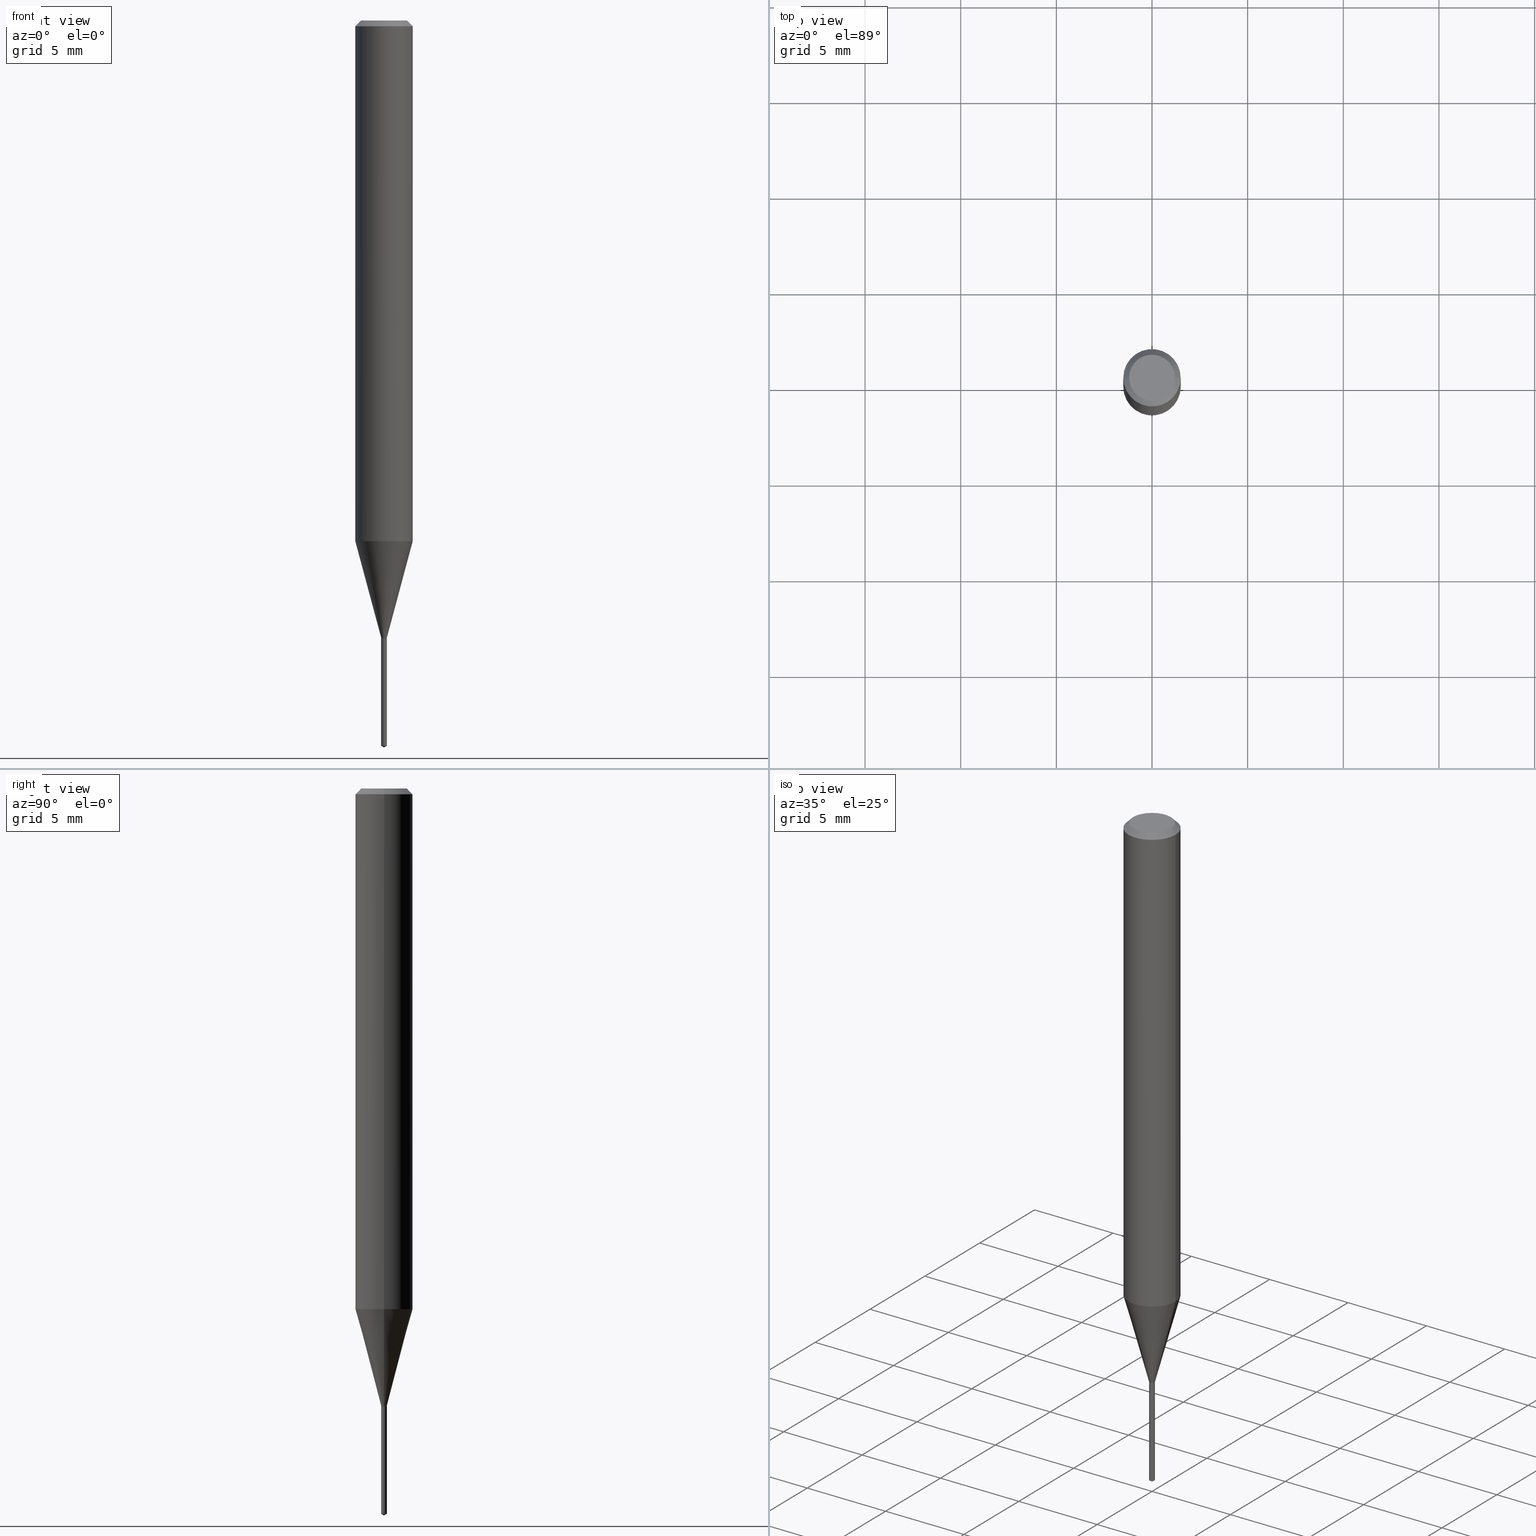
[diagram: canonical four-view strip — front | top / right | iso, engineering-drawing reading convention]
A machine part, canonical four-view strip (front | top / right | iso — engineering-drawing reading convention). The complete STEP part file that produces these views, byte-faithful:
ISO-10303-21;
HEADER;
FILE_DESCRIPTION (( 'STEP AP203' ),
    '1' );
FILE_NAME ('07749.STEP',
    '2024-04-24T02:13:36',
    ( '' ),
    ( '' ),
    'SwSTEP 2.0',
    'SolidWorks 2023',
    '' );
FILE_SCHEMA (( 'CONFIG_CONTROL_DESIGN' ));
ENDSEC;

DATA;
#1 = EDGE_CURVE ( 'NONE', #241, #45, #2, .T. ) ;
#2 = CIRCLE ( 'NONE', #392, 0.04724000000000000421 ) ;
#3 = DIRECTION ( 'NONE',  ( -2.445451076271118923E-29, 3.491506729089142946E-15, 1.000000000000000000 ) ) ;
#4 = ORIENTED_EDGE ( 'NONE', *, *, #381, .T. ) ;
#5 = VECTOR ( 'NONE', #327, 39.37007874015748854 ) ;
#6 = CC_DESIGN_DATE_AND_TIME_ASSIGNMENT ( #473, #354, ( #385 ) ) ;
#7 = DIRECTION ( 'NONE',  ( -2.445451076271118923E-29, 3.491506729089142946E-15, 1.000000000000000000 ) ) ;
#8 = ADVANCED_BREP_SHAPE_REPRESENTATION ( '07749', ( #371, #222, #218 ), #54 ) ;
#9 = DIRECTION ( 'NONE',  ( 1.000000000000000000, -6.982962677686228056E-15, 0.000000000000000000 ) ) ;
#10 = CC_DESIGN_PERSON_AND_ORGANIZATION_ASSIGNMENT ( #49, #198, ( #182 ) ) ;
#11 = CALENDAR_DATE ( 2024, 23, 4 ) ;
#12 = VECTOR ( 'NONE', #130, 39.37007874015748143 ) ;
#13 = VECTOR ( 'NONE', #441, 39.37007874015748854 ) ;
#14 = SECURITY_CLASSIFICATION_LEVEL ( 'unclassified' ) ;
#15 = DIRECTION ( 'NONE',  ( -2.445468806185136597E-29, 3.491481338843145583E-15, 1.000000000000000000 ) ) ;
#16 = CARTESIAN_POINT ( 'NONE',  ( -0.005400000000000000286, -4.401747510875783753E-15, -1.271700000000000275 ) ) ;
#17 = EDGE_CURVE ( 'NONE', #148, #287, #239, .T. ) ;
#18 = CYLINDRICAL_SURFACE ( 'NONE', #195, 0.005899999999999991189 ) ;
#19 = VERTEX_POINT ( 'NONE', #204 ) ;
#20 = CIRCLE ( 'NONE', #350, 0.05905000000000013016 ) ;
#21 = CONICAL_SURFACE ( 'NONE', #30, 65.52281426576949741, 1.029744258676661639 ) ;
#22 = CALENDAR_DATE ( 2024, 23, 4 ) ;
#23 = DIRECTION ( 'NONE',  ( -2.445468806185136597E-29, 3.491481338843145583E-15, 1.000000000000000000 ) ) ;
#24 = EDGE_CURVE ( 'NONE', #287, #450, #116, .T. ) ;
#25 = PERSON_AND_ORGANIZATION_ROLE ( 'classification_officer' ) ;
#26 = CARTESIAN_POINT ( 'NONE',  ( -4.119947979831787729E-17, -0.005900000000004440755, -1.271700000000000053 ) ) ;
#27 = ORIENTED_EDGE ( 'NONE', *, *, #437, .T. ) ;
#28 = DIRECTION ( 'NONE',  ( -2.445451076271118923E-29, 3.491506729089142946E-15, 1.000000000000000000 ) ) ;
#29 = VERTEX_POINT ( 'NONE', #383 ) ;
#30 = AXIS2_PLACEMENT_3D ( 'NONE', #439, #71, #359 ) ;
#31 = CARTESIAN_POINT ( 'NONE',  ( 2.620421311750143284E-29, -3.741267149571589236E-15, -1.071541499577713941 ) ) ;
#32 = EDGE_CURVE ( 'NONE', #172, #294, #88, .T. ) ;
#33 = ORIENTED_EDGE ( 'NONE', *, *, #77, .T. ) ;
#34 = CARTESIAN_POINT ( 'NONE',  ( -0.005899999999999991189, -4.391910130787065442E-15, -1.269900000000000029 ) ) ;
#35 = DIRECTION ( 'NONE',  ( -2.445468806185136597E-29, 3.491481338843145583E-15, 1.000000000000000000 ) ) ;
#36 = ORIENTED_EDGE ( 'NONE', *, *, #471, .T. ) ;
#37 = VECTOR ( 'NONE', #264, 39.37007874015748143 ) ;
#38 = DIRECTION ( 'NONE',  ( -6.982962677686264344E-15, -1.000000000000000000, 3.468864327941537811E-15 ) ) ;
#39 = EDGE_CURVE ( 'NONE', #19, #406, #415, .T. ) ;
#40 = CARTESIAN_POINT ( 'NONE',  ( 0.000000000000000000, 0.000000000000000000, 0.000000000000000000 ) ) ;
#41 = EDGE_LOOP ( 'NONE', ( #109, #475, #452, #170 ) ) ;
#42 =( NAMED_UNIT ( * ) SI_UNIT ( $, .STERADIAN. ) SOLID_ANGLE_UNIT ( ) );
#43 = PLANE ( 'NONE',  #244 ) ;
#44 = AXIS2_PLACEMENT_3D ( 'NONE', #386, #240, #390 ) ;
#45 = VERTEX_POINT ( 'NONE', #376 ) ;
#46 = CC_DESIGN_APPROVAL ( #115, ( #385 ) ) ;
#47 = EDGE_CURVE ( 'NONE', #399, #406, #370, .T. ) ;
#48 = DIRECTION ( 'NONE',  ( -2.445468806185136597E-29, 3.491481338843145583E-15, 1.000000000000000000 ) ) ;
#49 = PERSON_AND_ORGANIZATION ( #455, #402 ) ;
#50 = COORDINATED_UNIVERSAL_TIME_OFFSET ( 5, 0, .BEHIND. ) ;
#51 = DIRECTION ( 'NONE',  ( 1.000000000000000000, 0.000000000000000000, 0.000000000000000000 ) ) ;
#52 = DIRECTION ( 'NONE',  ( -2.445468806185136877E-29, 3.491481338843145188E-15, 1.000000000000000000 ) ) ;
#53 = CIRCLE ( 'NONE', #62, 0.005900000000000000730 ) ;
#54 =( GEOMETRIC_REPRESENTATION_CONTEXT ( 3 ) GLOBAL_UNCERTAINTY_ASSIGNED_CONTEXT ( ( #466 ) ) GLOBAL_UNIT_ASSIGNED_CONTEXT ( ( #75, #112, #42 ) ) REPRESENTATION_CONTEXT ( 'NONE', 'WORKASPACE' ) );
#55 = EDGE_CURVE ( 'NONE', #211, #19, #166, .T. ) ;
#56 = PLANE ( 'NONE',  #99 ) ;
#57 = FACE_OUTER_BOUND ( 'NONE', #365, .T. ) ;
#58 = DIRECTION ( 'NONE',  ( 1.000000000000000000, -6.982962677686266711E-15, 4.876185090822587894E-29 ) ) ;
#59 = CLOSED_SHELL ( 'NONE', ( #306, #258, #324, #461, #479, #282, #368, #442, #138, #200, #247, #422 ) ) ;
#60 = CC_DESIGN_PERSON_AND_ORGANIZATION_ASSIGNMENT ( #431, #125, ( #225 ) ) ;
#61 = ORIENTED_EDGE ( 'NONE', *, *, #348, .F. ) ;
#62 = AXIS2_PLACEMENT_3D ( 'NONE', #379, #3, #199 ) ;
#63 = CARTESIAN_POINT ( 'NONE',  ( -0.05904999999999999832, -1.471675286625323003E-15, -0.01181000000000007044 ) ) ;
#64 = ORIENTED_EDGE ( 'NONE', *, *, #238, .F. ) ;
#65 = CARTESIAN_POINT ( 'NONE',  ( 3.105500836974505052E-29, -4.433832152196910680E-15, -1.269900000000000029 ) ) ;
#66 = ORIENTED_EDGE ( 'NONE', *, *, #314, .F. ) ;
#67 = CARTESIAN_POINT ( 'NONE',  ( 3.105500836974505052E-29, -4.433832152196910680E-15, -1.269900000000000029 ) ) ;
#68 = CARTESIAN_POINT ( 'NONE',  ( 3.649992588380687370E-29, -5.211233266136413575E-15, -1.492554922347737456 ) ) ;
#69 = ORIENTED_EDGE ( 'NONE', *, *, #238, .T. ) ;
#70 = CIRCLE ( 'NONE', #92, 0.005899999999999991189 ) ;
#71 = DIRECTION ( 'NONE',  ( -2.445451076271118923E-29, 3.491506729089142946E-15, 1.000000000000000000 ) ) ;
#72 = EDGE_CURVE ( 'NONE', #406, #399, #160, .T. ) ;
#73 = DIRECTION ( 'NONE',  ( -2.445468806185136597E-29, 3.491481338843145583E-15, 1.000000000000000000 ) ) ;
#74 = DIRECTION ( 'NONE',  ( -2.445451076271118923E-29, 3.491506729089142946E-15, 1.000000000000000000 ) ) ;
#75 =( CONVERSION_BASED_UNIT ( 'INCH', #407 ) LENGTH_UNIT ( ) NAMED_UNIT ( #101 ) );
#76 = DIRECTION ( 'NONE',  ( -0.7071067811865453523, 2.468850131082234184E-15, -0.7071067811865496822 ) ) ;
#77 = EDGE_CURVE ( 'NONE', #29, #230, #291, .T. ) ;
#78 = AXIS2_PLACEMENT_3D ( 'NONE', #352, #23, #316 ) ;
#79 = DIRECTION ( 'NONE',  ( -2.445468806185136597E-29, 3.491481338843145583E-15, 1.000000000000000000 ) ) ;
#80 = DIRECTION ( 'NONE',  ( 2.445468806185136597E-29, -3.491481338843145583E-15, -1.000000000000000000 ) ) ;
#81 = PERSON_AND_ORGANIZATION ( #455, #402 ) ;
#82 = ORIENTED_EDGE ( 'NONE', *, *, #336, .F. ) ;
#83 = CARTESIAN_POINT ( 'NONE',  ( 0.005400000000000000286, -4.477824817066335725E-15, -1.271700000000000275 ) ) ;
#84 = VECTOR ( 'NONE', #197, 39.37007874015748143 ) ;
#85 = AXIS2_PLACEMENT_3D ( 'NONE', #65, #140, #215 ) ;
#86 = APPROVAL_STATUS ( 'not_yet_approved' ) ;
#87 = CARTESIAN_POINT ( 'NONE',  ( 3.658639355209220542E-29, -5.223643217390265926E-15, -1.496099999999999985 ) ) ;
#88 = LINE ( 'NONE', #467, #37 ) ;
#89 = EDGE_CURVE ( 'NONE', #440, #294, #384, .T. ) ;
#90 = LINE ( 'NONE', #26, #107 ) ;
#91 = AXIS2_PLACEMENT_3D ( 'NONE', #126, #430, #272 ) ;
#92 = AXIS2_PLACEMENT_3D ( 'NONE', #482, #149, #183 ) ;
#93 = FACE_OUTER_BOUND ( 'NONE', #196, .T. ) ;
#94 = CARTESIAN_POINT ( 'NONE',  ( 8.265746106709734507E-48, -1.180129479067563789E-33, -3.380025165646692144E-19 ) ) ;
#95 = CYLINDRICAL_SURFACE ( 'NONE', #401, 0.05905000000000006771 ) ;
#96 = APPROVAL ( #299, 'UNSPECIFIED' ) ;
#97 = EDGE_LOOP ( 'NONE', ( #403, #213, #191, #322 ) ) ;
#98 = CARTESIAN_POINT ( 'NONE',  ( 2.620421311750143284E-29, -3.741267149571589236E-15, -1.071541499577713941 ) ) ;
#99 = AXIS2_PLACEMENT_3D ( 'NONE', #127, #277, #212 ) ;
#100 = ORIENTED_EDGE ( 'NONE', *, *, #1, .T. ) ;
#101 = DIMENSIONAL_EXPONENTS ( 1.000000000000000000, 0.000000000000000000, 0.000000000000000000, 0.000000000000000000, 0.000000000000000000, 0.000000000000000000, 0.000000000000000000 ) ;
#102 = CARTESIAN_POINT ( 'NONE',  ( 3.658639355209220542E-29, -5.223643217390265926E-15, -1.496099999999999985 ) ) ;
#103 = ORIENTED_EDGE ( 'NONE', *, *, #471, .F. ) ;
#104 = FACE_OUTER_BOUND ( 'NONE', #118, .T. ) ;
#105 = EDGE_LOOP ( 'NONE', ( #111, #184, #209, #490 ) ) ;
#106 = EDGE_CURVE ( 'NONE', #294, #168, #151, .T. ) ;
#107 = VECTOR ( 'NONE', #163, 39.37007874015748143 ) ;
#108 = CARTESIAN_POINT ( 'NONE',  ( 0.000000000000000000, 0.000000000000000000, 0.000000000000000000 ) ) ;
#109 = ORIENTED_EDGE ( 'NONE', *, *, #296, .F. ) ;
#110 = EDGE_CURVE ( 'NONE', #45, #450, #328, .T. ) ;
#111 = ORIENTED_EDGE ( 'NONE', *, *, #336, .T. ) ;
#112 =( NAMED_UNIT ( * ) PLANE_ANGLE_UNIT ( ) SI_UNIT ( $, .RADIAN. ) );
#113 = CARTESIAN_POINT ( 'NONE',  ( 4.192202140987700220E-17, 0.005899999999995559838, -1.271700000000000053 ) ) ;
#114 = ORIENTED_EDGE ( 'NONE', *, *, #437, .F. ) ;
#115 = APPROVAL ( #271, 'UNSPECIFIED' ) ;
#116 = CIRCLE ( 'NONE', #425, 0.05904999999999999832 ) ;
#117 = LOCAL_TIME ( 22, 13, 36.00000000000000000, #338 ) ;
#118 = EDGE_LOOP ( 'NONE', ( #456, #194, #391 ) ) ;
#119 = EDGE_CURVE ( 'NONE', #241, #287, #141, .T. ) ;
#120 = ORIENTED_EDGE ( 'NONE', *, *, #388, .F. ) ;
#121 = DIRECTION ( 'NONE',  ( 1.000000000000000000, -6.982962677686296687E-15, 0.000000000000000000 ) ) ;
#122 = APPROVAL_ROLE ( '' ) ;
#123 = CARTESIAN_POINT ( 'NONE',  ( 3.649992588380687370E-29, -5.211233266136413575E-15, -1.492554922347737456 ) ) ;
#124 = CONICAL_SURFACE ( 'NONE', #85, 0.005899999999999991189, 0.2617993877991499074 ) ;
#125 = PERSON_AND_ORGANIZATION_ROLE ( 'creator' ) ;
#126 = CARTESIAN_POINT ( 'NONE',  ( 3.109902680825639250E-29, -4.440116818606829671E-15, -1.271700000000000275 ) ) ;
#127 = CARTESIAN_POINT ( 'NONE',  ( -4.181500184712240002E-28, -6.877513706940021772E-14, -1.271700000000000053 ) ) ;
#128 = CIRCLE ( 'NONE', #44, 0.05904999999999999832 ) ;
#129 = DIRECTION ( 'NONE',  ( -2.445468806185136597E-29, 3.491481338843145583E-15, 1.000000000000000000 ) ) ;
#130 = DIRECTION ( 'NONE',  ( -0.7071067811864192310, 7.493145998869890310E-15, 0.7071067811866758035 ) ) ;
#131 = ORIENTED_EDGE ( 'NONE', *, *, #89, .T. ) ;
#132 = DIRECTION ( 'NONE',  ( 2.445468806185136597E-29, -3.491481338843145583E-15, -1.000000000000000000 ) ) ;
#133 = DATE_AND_TIME ( #339, #292 ) ;
#134 = DIRECTION ( 'NONE',  ( -6.982962677686265133E-15, -1.000000000000000000, 0.000000000000000000 ) ) ;
#135 = AXIS2_PLACEMENT_3D ( 'NONE', #68, #74, #189 ) ;
#136 = ORIENTED_EDGE ( 'NONE', *, *, #174, .T. ) ;
#137 = LINE ( 'NONE', #34, #5 ) ;
#138 = ADVANCED_FACE ( 'NONE', ( #289 ), #253, .T. ) ;
#139 = VERTEX_POINT ( 'NONE', #447 ) ;
#140 = DIRECTION ( 'NONE',  ( -2.445468806185136597E-29, 3.491481338843145583E-15, 1.000000000000000000 ) ) ;
#141 = LINE ( 'NONE', #257, #463 ) ;
#142 = DIRECTION ( 'NONE',  ( 1.000000000000000000, -6.982962677686228056E-15, 0.000000000000000000 ) ) ;
#143 = ORIENTED_EDGE ( 'NONE', *, *, #17, .T. ) ;
#144 = VECTOR ( 'NONE', #249, 39.37007874015748143 ) ;
#145 = APPROVAL ( #86, 'UNSPECIFIED' ) ;
#146 = CARTESIAN_POINT ( 'NONE',  ( -4.119947979831246003E-17, -0.005900000000005210105, -1.492554922347737456 ) ) ;
#147 = DIRECTION ( 'NONE',  ( 0.7071067811865453523, -7.319954787623248157E-15, -0.7071067811865496822 ) ) ;
#148 = VERTEX_POINT ( 'NONE', #227 ) ;
#149 = DIRECTION ( 'NONE',  ( -2.445468806185136597E-29, 3.491481338843145583E-15, 1.000000000000000000 ) ) ;
#150 = PRODUCT_RELATED_PRODUCT_CATEGORY ( 'detail', '', ( #434 ) ) ;
#151 = LINE ( 'NONE', #113, #268 ) ;
#152 = ORIENTED_EDGE ( 'NONE', *, *, #32, .F. ) ;
#153 = PERSON_AND_ORGANIZATION ( #455, #402 ) ;
#154 = CARTESIAN_POINT ( 'NONE',  ( 4.192202140988244411E-17, 0.005899999999995559838, -1.271700000000000053 ) ) ;
#155 = ORIENTED_EDGE ( 'NONE', *, *, #47, .T. ) ;
#156 = ADVANCED_FACE ( 'NONE', ( #334 ), #43, .F. ) ;
#157 = CARTESIAN_POINT ( 'NONE',  ( 3.109902680825639250E-29, -4.440116818606829671E-15, -1.271700000000000275 ) ) ;
#158 = DATE_AND_TIME ( #457, #472 ) ;
#159 = CARTESIAN_POINT ( 'NONE',  ( 0.005899999999999991189, -4.119947979834891403E-17, 2.876944297719597571E-31 ) ) ;
#160 = CIRCLE ( 'NONE', #470, 0.005899999999999991189 ) ;
#161 = EDGE_CURVE ( 'NONE', #294, #440, #275, .T. ) ;
#162 = CARTESIAN_POINT ( 'NONE',  ( 4.132873053354867254E-48, -5.900647395337818946E-34, -1.690012582823346072E-19 ) ) ;
#163 = DIRECTION ( 'NONE',  ( -2.445451076271118643E-29, 3.491506729089142552E-15, 1.000000000000000000 ) ) ;
#164 = EDGE_CURVE ( 'NONE', #168, #356, #53, .T. ) ;
#165 = DIRECTION ( 'NONE',  ( -6.982962677686265133E-15, -1.000000000000000000, 0.000000000000000000 ) ) ;
#166 = CIRCLE ( 'NONE', #245, 0.005400000000000000286 ) ;
#167 = CC_DESIGN_APPROVAL ( #96, ( #182 ) ) ;
#168 = VERTEX_POINT ( 'NONE', #154 ) ;
#169 = CYLINDRICAL_SURFACE ( 'NONE', #488, 0.005900000000000000730 ) ;
#170 = ORIENTED_EDGE ( 'NONE', *, *, #47, .F. ) ;
#171 = CARTESIAN_POINT ( 'NONE',  ( -4.119947979831787729E-17, -0.005900000000004440755, -1.271700000000000053 ) ) ;
#172 = VERTEX_POINT ( 'NONE', #87 ) ;
#173 = CARTESIAN_POINT ( 'NONE',  ( 4.192202140988240097E-17, 0.005899999999994787019, -1.492554922347737456 ) ) ;
#174 = EDGE_CURVE ( 'NONE', #406, #29, #462, .T. ) ;
#175 = AXIS2_PLACEMENT_3D ( 'NONE', #123, #7, #335 ) ;
#176 = ORIENTED_EDGE ( 'NONE', *, *, #454, .F. ) ;
#177 = LOCAL_TIME ( 22, 13, 36.00000000000000000, #202 ) ;
#178 = CYLINDRICAL_SURFACE ( 'NONE', #453, 0.005900000000000000730 ) ;
#179 = ORIENTED_EDGE ( 'NONE', *, *, #343, .T. ) ;
#180 = DIRECTION ( 'NONE',  ( 1.000000000000000000, -6.982962677686265133E-15, 0.000000000000000000 ) ) ;
#181 = DIRECTION ( 'NONE',  ( -2.445468806185136597E-29, 3.491481338843145583E-15, 1.000000000000000000 ) ) ;
#182 = PRODUCT_DEFINITION ( 'UNKNOWN', '', #225, #420 ) ;
#183 = DIRECTION ( 'NONE',  ( 1.000000000000000000, -6.982962677686228056E-15, 0.000000000000000000 ) ) ;
#184 = ORIENTED_EDGE ( 'NONE', *, *, #296, .T. ) ;
#185 = CLOSED_SHELL ( 'NONE', ( #302, #426, #412, #485, #156 ) ) ;
#186 = CC_DESIGN_PERSON_AND_ORGANIZATION_ASSIGNMENT ( #342, #284, ( #225 ) ) ;
#187 = VECTOR ( 'NONE', #486, 39.37007874015748143 ) ;
#188 = FACE_OUTER_BOUND ( 'NONE', #448, .T. ) ;
#189 = DIRECTION ( 'NONE',  ( -6.982962677686265133E-15, -1.000000000000000000, 0.000000000000000000 ) ) ;
#190 = CARTESIAN_POINT ( 'NONE',  ( -0.005899999999999991189, -4.394179593657313002E-15, -1.271200000000000108 ) ) ;
#191 = ORIENTED_EDGE ( 'NONE', *, *, #119, .T. ) ;
#192 = APPLICATION_PROTOCOL_DEFINITION ( 'international standard', 'config_control_design', 1994, #404 ) ;
#193 = DIRECTION ( 'NONE',  ( 6.982962677686265922E-15, 1.000000000000000000, -3.491506729089142552E-15 ) ) ;
#194 = ORIENTED_EDGE ( 'NONE', *, *, #32, .T. ) ;
#195 = AXIS2_PLACEMENT_3D ( 'NONE', #346, #436, #474 ) ;
#196 = EDGE_LOOP ( 'NONE', ( #358, #155, #136, #446 ) ) ;
#197 = DIRECTION ( 'NONE',  ( -2.445468806185136877E-29, 3.491481338843145188E-15, 1.000000000000000000 ) ) ;
#198 = PERSON_AND_ORGANIZATION_ROLE ( 'creator' ) ;
#199 = DIRECTION ( 'NONE',  ( -6.982962677686265133E-15, -1.000000000000000000, 0.000000000000000000 ) ) ;
#200 = ADVANCED_FACE ( 'NONE', ( #201 ), #300, .F. ) ;
#201 = FACE_OUTER_BOUND ( 'NONE', #396, .T. ) ;
#202 = COORDINATED_UNIVERSAL_TIME_OFFSET ( 5, 0, .BEHIND. ) ;
#203 = CIRCLE ( 'NONE', #305, 0.005900000000000000730 ) ;
#204 = CARTESIAN_POINT ( 'NONE',  ( 0.005400000000000000286, -4.477824817066335725E-15, -1.271700000000000275 ) ) ;
#205 = CARTESIAN_POINT ( 'NONE',  ( -0.005899999999999991189, -4.394179593657313002E-15, -1.269900000000000029 ) ) ;
#206 = FACE_OUTER_BOUND ( 'NONE', #256, .T. ) ;
#207 = PRODUCT_DEFINITION_SHAPE ( 'NONE', 'NONE',  #182 ) ;
#208 = CARTESIAN_POINT ( 'NONE',  ( 3.109902680825638129E-29, -4.440116818606828093E-15, -1.271700000000000053 ) ) ;
#209 = ORIENTED_EDGE ( 'NONE', *, *, #72, .F. ) ;
#210 = DIRECTION ( 'NONE',  ( -2.445468806185136597E-29, 3.491481338843145583E-15, 1.000000000000000000 ) ) ;
#211 = VERTEX_POINT ( 'NONE', #413 ) ;
#212 = DIRECTION ( 'NONE',  ( 1.000000000000000000, -6.982962677686265922E-15, 4.876176775795935793E-29 ) ) ;
#213 = ORIENTED_EDGE ( 'NONE', *, *, #1, .F. ) ;
#214 = CC_DESIGN_PERSON_AND_ORGANIZATION_ASSIGNMENT ( #309, #25, ( #385 ) ) ;
#215 = DIRECTION ( 'NONE',  ( 1.000000000000000000, -6.982962677686228056E-15, 0.000000000000000000 ) ) ;
#216 = CONICAL_SURFACE ( 'NONE', #224, 0.05904999999999999832, 0.7853981633974452814 ) ;
#217 = EDGE_LOOP ( 'NONE', ( #480, #373, #375, #263 ) ) ;
#218 = AXIS2_PLACEMENT_3D ( 'NONE', #460, #382, #51 ) ;
#219 = CARTESIAN_POINT ( 'NONE',  ( 0.005899999999999991189, -4.479570557735755651E-15, -1.271200000000000108 ) ) ;
#220 = FACE_OUTER_BOUND ( 'NONE', #394, .T. ) ;
#221 = ORIENTED_EDGE ( 'NONE', *, *, #266, .T. ) ;
#222 = MANIFOLD_SOLID_BREP ( 'Body-Move/Copy2[2]', #59 ) ;
#223 = DIRECTION ( 'NONE',  ( 1.000000000000000000, -6.982962677686296687E-15, 0.000000000000000000 ) ) ;
#224 = AXIS2_PLACEMENT_3D ( 'NONE', #357, #132, #312 ) ;
#225 = PRODUCT_DEFINITION_FORMATION_WITH_SPECIFIED_SOURCE ( 'ANY', '', #434, .NOT_KNOWN. ) ;
#226 = FACE_OUTER_BOUND ( 'NONE', #414, .T. ) ;
#227 = CARTESIAN_POINT ( 'NONE',  ( -0.05905000000000013710, -3.321691664105248954E-15, -1.071541499577713941 ) ) ;
#228 = EDGE_LOOP ( 'NONE', ( #82, #389 ) ) ;
#229 = DIRECTION ( 'NONE',  ( 2.445451076271118923E-29, -3.491506729089142552E-15, -1.000000000000000000 ) ) ;
#230 = VERTEX_POINT ( 'NONE', #205 ) ;
#231 = DIRECTION ( 'NONE',  ( 0.7071067811864192310, -2.468850131080913236E-15, 0.7071067811866758035 ) ) ;
#232 = VECTOR ( 'NONE', #432, 39.37007874015748143 ) ;
#233 = AXIS2_PLACEMENT_3D ( 'NONE', #487, #397, #38 ) ;
#234 = CC_DESIGN_DATE_AND_TIME_ASSIGNMENT ( #304, #269, ( #182 ) ) ;
#235 = CARTESIAN_POINT ( 'NONE',  ( 3.108679946422545888E-29, -4.438371077937407378E-15, -1.271200000000000108 ) ) ;
#236 = APPROVAL_ROLE ( '' ) ;
#237 = LINE ( 'NONE', #16, #12 ) ;
#238 = EDGE_CURVE ( 'NONE', #356, #168, #203, .T. ) ;
#239 = LINE ( 'NONE', #340, #84 ) ;
#240 = DIRECTION ( 'NONE',  ( -2.445468806185136597E-29, 3.491481338843145583E-15, 1.000000000000000000 ) ) ;
#241 = VERTEX_POINT ( 'NONE', #279 ) ;
#242 = APPROVAL_ROLE ( '' ) ;
#243 = FACE_OUTER_BOUND ( 'NONE', #283, .T. ) ;
#244 = AXIS2_PLACEMENT_3D ( 'NONE', #458, #229, #193 ) ;
#245 = AXIS2_PLACEMENT_3D ( 'NONE', #157, #303, #121 ) ;
#246 = CC_DESIGN_APPROVAL ( #145, ( #225 ) ) ;
#247 = ADVANCED_FACE ( 'NONE', ( #468 ), #56, .F. ) ;
#248 = ORIENTED_EDGE ( 'NONE', *, *, #360, .T. ) ;
#249 = DIRECTION ( 'NONE',  ( -5.985567269335968101E-15, -0.8571673007021141100, 0.5150380749100510469 ) ) ;
#250 = EDGE_LOOP ( 'NONE', ( #69, #278 ) ) ;
#251 = FACE_OUTER_BOUND ( 'NONE', #252, .T. ) ;
#252 = EDGE_LOOP ( 'NONE', ( #33, #27, #176, #120 ) ) ;
#253 = CONICAL_SURFACE ( 'NONE', #408, 0.05904999999999999832, 0.7853981633974452814 ) ;
#254 = FACE_OUTER_BOUND ( 'NONE', #41, .T. ) ;
#255 =( LENGTH_UNIT ( ) NAMED_UNIT ( * ) SI_UNIT ( $, .METRE. ) );
#256 = EDGE_LOOP ( 'NONE', ( #131, #438, #64, #66 ) ) ;
#257 = CARTESIAN_POINT ( 'NONE',  ( -0.05904999999999999832, 3.711095515056362547E-16, -0.01181000000000007044 ) ) ;
#258 = ADVANCED_FACE ( 'NONE', ( #243 ), #216, .T. ) ;
#259 = AXIS2_PLACEMENT_3D ( 'NONE', #40, #35, #323 ) ;
#260 = ORIENTED_EDGE ( 'NONE', *, *, #161, .F. ) ;
#261 = COORDINATED_UNIVERSAL_TIME_OFFSET ( 5, 0, .BEHIND. ) ;
#262 = DIRECTION ( 'NONE',  ( 2.438088387897960049E-29, -3.491481338843145188E-15, -1.000000000000000000 ) ) ;
#263 = ORIENTED_EDGE ( 'NONE', *, *, #164, .F. ) ;
#264 = DIRECTION ( 'NONE',  ( 6.090539988449806046E-15, 0.8571673007021177737, 0.5150380749100450517 ) ) ;
#265 = APPLICATION_PROTOCOL_DEFINITION ( 'international standard', 'config_control_design', 1994, #366 ) ;
#266 = EDGE_CURVE ( 'NONE', #45, #241, #377, .T. ) ;
#267 = DIRECTION ( 'NONE',  ( -2.445468806185136597E-29, 3.491481338843145583E-15, 1.000000000000000000 ) ) ;
#268 = VECTOR ( 'NONE', #362, 39.37007874015748143 ) ;
#269 = DATE_TIME_ROLE ( 'creation_date' ) ;
#270 = DIRECTION ( 'NONE',  ( 1.000000000000000000, -6.982962677686266711E-15, 0.000000000000000000 ) ) ;
#271 = APPROVAL_STATUS ( 'not_yet_approved' ) ;
#272 = DIRECTION ( 'NONE',  ( 1.000000000000000000, -6.982962677686296687E-15, 0.000000000000000000 ) ) ;
#273 = CC_DESIGN_PERSON_AND_ORGANIZATION_ASSIGNMENT ( #81, #451, ( #434 ) ) ;
#274 = CALENDAR_DATE ( 2024, 23, 4 ) ;
#275 = CIRCLE ( 'NONE', #175, 0.005900000000000000730 ) ;
#276 = AXIS2_PLACEMENT_3D ( 'NONE', #31, #286, #180 ) ;
#277 = DIRECTION ( 'NONE',  ( -2.438088387897960049E-29, 3.491481338843145188E-15, 1.000000000000000000 ) ) ;
#278 = ORIENTED_EDGE ( 'NONE', *, *, #164, .T. ) ;
#279 = CARTESIAN_POINT ( 'NONE',  ( -0.04724000000000000421, 3.504923541997677355E-16, -3.380025165670481712E-19 ) ) ;
#280 = ORIENTED_EDGE ( 'NONE', *, *, #119, .F. ) ;
#281 = CARTESIAN_POINT ( 'NONE',  ( -0.005899999999999991189, 4.192202140984584836E-17, -2.902171703250389691E-31 ) ) ;
#282 = ADVANCED_FACE ( 'NONE', ( #93 ), #18, .T. ) ;
#283 = EDGE_LOOP ( 'NONE', ( #318, #285, #483, #280 ) ) ;
#284 = PERSON_AND_ORGANIZATION_ROLE ( 'design_supplier' ) ;
#285 = ORIENTED_EDGE ( 'NONE', *, *, #110, .T. ) ;
#286 = DIRECTION ( 'NONE',  ( -2.445468806185136597E-29, 3.491481338843145583E-15, 1.000000000000000000 ) ) ;
#287 = VERTEX_POINT ( 'NONE', #63 ) ;
#288 = CARTESIAN_POINT ( 'NONE',  ( 0.05905000000000006771, -4.123439461173745257E-16, 2.879382386107503723E-30 ) ) ;
#289 = FACE_OUTER_BOUND ( 'NONE', #97, .T. ) ;
#290 = DIRECTION ( 'NONE',  ( -6.982962677686265133E-15, -1.000000000000000000, 0.000000000000000000 ) ) ;
#291 = CIRCLE ( 'NONE', #418, 0.005899999999999991189 ) ;
#292 = LOCAL_TIME ( 22, 13, 36.00000000000000000, #50 ) ;
#293 = DIRECTION ( 'NONE',  ( -2.445451076271118923E-29, 3.491506729089142946E-15, 1.000000000000000000 ) ) ;
#294 = VERTEX_POINT ( 'NONE', #173 ) ;
#295 = DIRECTION ( 'NONE',  ( -2.445468806185136597E-29, 3.491481338843145583E-15, 1.000000000000000000 ) ) ;
#296 = EDGE_CURVE ( 'NONE', #211, #399, #237, .T. ) ;
#297 = CONICAL_SURFACE ( 'NONE', #91, 0.005400000000000000286, 0.7853981633972668686 ) ;
#298 = AXIS2_PLACEMENT_3D ( 'NONE', #67, #73, #142 ) ;
#299 = APPROVAL_STATUS ( 'not_yet_approved' ) ;
#300 = PLANE ( 'NONE',  #435 ) ;
#301 = ORIENTED_EDGE ( 'NONE', *, *, #331, .F. ) ;
#302 = ADVANCED_FACE ( 'NONE', ( #206 ), #169, .T. ) ;
#303 = DIRECTION ( 'NONE',  ( -2.445468806185136597E-29, 3.491481338843145583E-15, 1.000000000000000000 ) ) ;
#304 = DATE_AND_TIME ( #11, #117 ) ;
#305 = AXIS2_PLACEMENT_3D ( 'NONE', #393, #308, #134 ) ;
#306 = ADVANCED_FACE ( 'NONE', ( #387 ), #297, .T. ) ;
#307 = SHAPE_DEFINITION_REPRESENTATION ( #207, #8 ) ;
#308 = DIRECTION ( 'NONE',  ( -2.445451076271118923E-29, 3.491506729089142946E-15, 1.000000000000000000 ) ) ;
#309 = PERSON_AND_ORGANIZATION ( #455, #402 ) ;
#310 = VECTOR ( 'NONE', #52, 39.37007874015748143 ) ;
#311 = CC_DESIGN_SECURITY_CLASSIFICATION ( #385, ( #225 ) ) ;
#312 = DIRECTION ( 'NONE',  ( -1.000000000000000000, 6.982962677686266711E-15, 0.000000000000000000 ) ) ;
#313 = ORIENTED_EDGE ( 'NONE', *, *, #454, .T. ) ;
#314 = EDGE_CURVE ( 'NONE', #440, #356, #90, .T. ) ;
#315 = PERSON_AND_ORGANIZATION ( #455, #402 ) ;
#316 = DIRECTION ( 'NONE',  ( 1.000000000000000000, -6.982962677686296687E-15, 0.000000000000000000 ) ) ;
#317 = LINE ( 'NONE', #102, #144 ) ;
#318 = ORIENTED_EDGE ( 'NONE', *, *, #266, .F. ) ;
#319 = DIRECTION ( 'NONE',  ( -2.445468806185136597E-29, 3.491481338843145583E-15, 1.000000000000000000 ) ) ;
#320 = AXIS2_PLACEMENT_3D ( 'NONE', #428, #319, #58 ) ;
#321 = APPROVAL_PERSON_ORGANIZATION ( #153, #96, #122 ) ;
#322 = ORIENTED_EDGE ( 'NONE', *, *, #24, .T. ) ;
#323 = DIRECTION ( 'NONE',  ( 1.000000000000000000, -6.982962677686266711E-15, 4.876176775795935232E-29 ) ) ;
#324 = ADVANCED_FACE ( 'NONE', ( #57 ), #95, .T. ) ;
#325 = LINE ( 'NONE', #288, #187 ) ;
#326 = DIRECTION ( 'NONE',  ( -1.000000000000000000, 6.982962677686266711E-15, 0.000000000000000000 ) ) ;
#327 = DIRECTION ( 'NONE',  ( -0.2588190451025211836, 5.211531920934547886E-15, 0.9659258262890679791 ) ) ;
#328 = LINE ( 'NONE', #409, #337 ) ;
#329 = ORIENTED_EDGE ( 'NONE', *, *, #388, .T. ) ;
#330 = VECTOR ( 'NONE', #231, 39.37007874015748143 ) ;
#331 = EDGE_CURVE ( 'NONE', #450, #287, #128, .T. ) ;
#332 = CARTESIAN_POINT ( 'NONE',  ( 2.888098660104663766E-31, -4.123439461173779647E-17, -0.01181000000000007044 ) ) ;
#333 = ORIENTED_EDGE ( 'NONE', *, *, #72, .T. ) ;
#334 = FACE_OUTER_BOUND ( 'NONE', #250, .T. ) ;
#335 = DIRECTION ( 'NONE',  ( -6.982962677686265133E-15, -1.000000000000000000, 0.000000000000000000 ) ) ;
#336 = EDGE_CURVE ( 'NONE', #19, #211, #444, .T. ) ;
#337 = VECTOR ( 'NONE', #147, 39.37007874015748143 ) ;
#338 = COORDINATED_UNIVERSAL_TIME_OFFSET ( 5, 0, .BEHIND. ) ;
#339 = CALENDAR_DATE ( 2024, 23, 4 ) ;
#340 = CARTESIAN_POINT ( 'NONE',  ( -0.05905000000000006771, 4.195754854663396409E-16, -2.904631170795525045E-30 ) ) ;
#341 = CONICAL_SURFACE ( 'NONE', #410, 0.005400000000000000286, 0.7853981633972668686 ) ;
#342 = PERSON_AND_ORGANIZATION ( #455, #402 ) ;
#343 = EDGE_CURVE ( 'NONE', #399, #230, #476, .T. ) ;
#344 = CARTESIAN_POINT ( 'NONE',  ( 2.888098660104663766E-31, -4.123439461173779647E-17, -0.01181000000000007044 ) ) ;
#345 = APPROVAL_DATE_TIME ( #427, #115 ) ;
#346 = CARTESIAN_POINT ( 'NONE',  ( 0.000000000000000000, 0.000000000000000000, 0.000000000000000000 ) ) ;
#347 = DIRECTION ( 'NONE',  ( -2.445468806185136597E-29, 3.491481338843145583E-15, 1.000000000000000000 ) ) ;
#348 = EDGE_CURVE ( 'NONE', #148, #139, #20, .T. ) ;
#349 = APPROVAL_DATE_TIME ( #133, #145 ) ;
#350 = AXIS2_PLACEMENT_3D ( 'NONE', #98, #210, #355 ) ;
#351 = LOCAL_TIME ( 22, 13, 36.00000000000000000, #477 ) ;
#352 = CARTESIAN_POINT ( 'NONE',  ( 3.109902680825639250E-29, -4.440116818606829671E-15, -1.271700000000000275 ) ) ;
#353 = ORIENTED_EDGE ( 'NONE', *, *, #174, .F. ) ;
#354 = DATE_TIME_ROLE ( 'classification_date' ) ;
#355 = DIRECTION ( 'NONE',  ( 1.000000000000000000, -6.982962677686265133E-15, 0.000000000000000000 ) ) ;
#356 = VERTEX_POINT ( 'NONE', #171 ) ;
#357 = CARTESIAN_POINT ( 'NONE',  ( 2.888098660104663766E-31, -4.123439461173779647E-17, -0.01181000000000007044 ) ) ;
#358 = ORIENTED_EDGE ( 'NONE', *, *, #343, .F. ) ;
#359 = DIRECTION ( 'NONE',  ( -6.982962677686264344E-15, -1.000000000000000000, 3.468864327941537811E-15 ) ) ;
#360 = EDGE_CURVE ( 'NONE', #172, #440, #317, .T. ) ;
#361 = CONICAL_SURFACE ( 'NONE', #298, 0.005899999999999991189, 0.2617993877991499074 ) ;
#362 = DIRECTION ( 'NONE',  ( -2.445451076271118643E-29, 3.491506729089142552E-15, 1.000000000000000000 ) ) ;
#363 = ORIENTED_EDGE ( 'NONE', *, *, #17, .F. ) ;
#364 = CARTESIAN_POINT ( 'NONE',  ( 3.109902680825639250E-29, -4.440116818606829671E-15, -1.271700000000000275 ) ) ;
#365 = EDGE_LOOP ( 'NONE', ( #313, #143, #301, #103 ) ) ;
#366 = APPLICATION_CONTEXT ( 'configuration controlled 3d designs of mechanical parts and assemblies' ) ;
#367 = CARTESIAN_POINT ( 'NONE',  ( 0.05904999999999999832, -4.535783407291118600E-16, -0.01181000000000007044 ) ) ;
#368 = ADVANCED_FACE ( 'NONE', ( #395 ), #124, .T. ) ;
#369 = DIRECTION ( 'NONE',  ( 1.000000000000000000, -6.982962677686266711E-15, 4.876176775795936353E-29 ) ) ;
#370 = CIRCLE ( 'NONE', #464, 0.005899999999999991189 ) ;
#371 = MANIFOLD_SOLID_BREP ( 'Body-Move/Copy2[1]', #185 ) ;
#372 = FACE_OUTER_BOUND ( 'NONE', #217, .T. ) ;
#373 = ORIENTED_EDGE ( 'NONE', *, *, #161, .T. ) ;
#374 = EDGE_LOOP ( 'NONE', ( #114, #4, #329, #61 ) ) ;
#375 = ORIENTED_EDGE ( 'NONE', *, *, #314, .T. ) ;
#376 = CARTESIAN_POINT ( 'NONE',  ( 0.04724000000000000421, -3.852183633974369345E-16, -3.380025165621689721E-19 ) ) ;
#377 = CIRCLE ( 'NONE', #320, 0.04724000000000000421 ) ;
#378 = MECHANICAL_CONTEXT ( 'NONE', #366, 'mechanical' ) ;
#379 = CARTESIAN_POINT ( 'NONE',  ( 3.109902680825638129E-29, -4.440116818606828093E-15, -1.271700000000000053 ) ) ;
#380 = CARTESIAN_POINT ( 'NONE',  ( 3.105500836974505052E-29, -4.433832152196910680E-15, -1.269900000000000029 ) ) ;
#381 = EDGE_CURVE ( 'NONE', #230, #29, #70, .T. ) ;
#382 = DIRECTION ( 'NONE',  ( 0.000000000000000000, 0.000000000000000000, 1.000000000000000000 ) ) ;
#383 = CARTESIAN_POINT ( 'NONE',  ( 0.005899999999999991189, -4.475031631995258953E-15, -1.269900000000000029 ) ) ;
#384 = CIRCLE ( 'NONE', #135, 0.005900000000000000730 ) ;
#385 = SECURITY_CLASSIFICATION ( '', '', #14 ) ;
#386 = CARTESIAN_POINT ( 'NONE',  ( 2.888098660104663766E-31, -4.123439461173779647E-17, -0.01181000000000007044 ) ) ;
#387 = FACE_OUTER_BOUND ( 'NONE', #105, .T. ) ;
#388 = EDGE_CURVE ( 'NONE', #29, #139, #443, .T. ) ;
#389 = ORIENTED_EDGE ( 'NONE', *, *, #55, .F. ) ;
#390 = DIRECTION ( 'NONE',  ( 1.000000000000000000, -6.982962677686266711E-15, 0.000000000000000000 ) ) ;
#391 = ORIENTED_EDGE ( 'NONE', *, *, #89, .F. ) ;
#392 = AXIS2_PLACEMENT_3D ( 'NONE', #94, #129, #429 ) ;
#393 = CARTESIAN_POINT ( 'NONE',  ( 3.109902680825638129E-29, -4.440116818606828093E-15, -1.271700000000000053 ) ) ;
#394 = EDGE_LOOP ( 'NONE', ( #333, #179, #411, #353 ) ) ;
#395 = FACE_OUTER_BOUND ( 'NONE', #374, .T. ) ;
#396 = EDGE_LOOP ( 'NONE', ( #100, #221 ) ) ;
#397 = DIRECTION ( 'NONE',  ( -2.445451076271118923E-29, 3.491506729089142946E-15, 1.000000000000000000 ) ) ;
#398 = DIRECTION ( 'NONE',  ( 1.000000000000000000, -6.982962677686228056E-15, 0.000000000000000000 ) ) ;
#399 = VERTEX_POINT ( 'NONE', #190 ) ;
#400 = CARTESIAN_POINT ( 'NONE',  ( 0.005899999999999991189, -4.475031631995258953E-15, -1.269900000000000029 ) ) ;
#401 = AXIS2_PLACEMENT_3D ( 'NONE', #424, #347, #478 ) ;
#402 = ORGANIZATION ( 'UNSPECIFIED', 'UNSPECIFIED', '' ) ;
#403 = ORIENTED_EDGE ( 'NONE', *, *, #110, .F. ) ;
#404 = APPLICATION_CONTEXT ( 'configuration controlled 3d designs of mechanical parts and assemblies' ) ;
#405 = CYLINDRICAL_SURFACE ( 'NONE', #419, 0.05905000000000006771 ) ;
#406 = VERTEX_POINT ( 'NONE', #219 ) ;
#407 = LENGTH_MEASURE_WITH_UNIT ( LENGTH_MEASURE( 0.02539999999999999897 ), #255 );
#408 = AXIS2_PLACEMENT_3D ( 'NONE', #332, #80, #326 ) ;
#409 = CARTESIAN_POINT ( 'NONE',  ( 0.05904999999999999832, -4.463468013801466955E-16, -0.01181000000000007044 ) ) ;
#410 = AXIS2_PLACEMENT_3D ( 'NONE', #364, #295, #223 ) ;
#411 = ORIENTED_EDGE ( 'NONE', *, *, #77, .F. ) ;
#412 = ADVANCED_FACE ( 'NONE', ( #226 ), #489, .T. ) ;
#413 = CARTESIAN_POINT ( 'NONE',  ( -0.005400000000000000286, -4.399098283701672552E-15, -1.271700000000000275 ) ) ;
#414 = EDGE_LOOP ( 'NONE', ( #152, #248, #260 ) ) ;
#415 = LINE ( 'NONE', #83, #330 ) ;
#416 = APPROVAL_DATE_TIME ( #158, #96 ) ;
#417 = DIRECTION ( 'NONE',  ( 1.000000000000000000, -6.982962677686228056E-15, 0.000000000000000000 ) ) ;
#418 = AXIS2_PLACEMENT_3D ( 'NONE', #380, #181, #398 ) ;
#419 = AXIS2_PLACEMENT_3D ( 'NONE', #108, #79, #369 ) ;
#420 = DESIGN_CONTEXT ( 'detailed design', #404, 'design' ) ;
#421 = PERSON_AND_ORGANIZATION ( #455, #402 ) ;
#422 = ADVANCED_FACE ( 'NONE', ( #254 ), #341, .T. ) ;
#423 = DIRECTION ( 'NONE',  ( -1.000000000000000000, 6.982962677686265922E-15, -4.876176775795935793E-29 ) ) ;
#424 = CARTESIAN_POINT ( 'NONE',  ( 0.000000000000000000, 0.000000000000000000, 0.000000000000000000 ) ) ;
#425 = AXIS2_PLACEMENT_3D ( 'NONE', #344, #15, #270 ) ;
#426 = ADVANCED_FACE ( 'NONE', ( #104 ), #21, .T. ) ;
#427 = DATE_AND_TIME ( #22, #351 ) ;
#428 = CARTESIAN_POINT ( 'NONE',  ( 8.265746106709734507E-48, -1.180129479067563789E-33, -3.380025165646692144E-19 ) ) ;
#429 = DIRECTION ( 'NONE',  ( 1.000000000000000000, -6.982962677686266711E-15, 4.876185090822587894E-29 ) ) ;
#430 = DIRECTION ( 'NONE',  ( -2.445468806185136597E-29, 3.491481338843145583E-15, 1.000000000000000000 ) ) ;
#431 = PERSON_AND_ORGANIZATION ( #455, #402 ) ;
#432 = DIRECTION ( 'NONE',  ( -2.445468806185136877E-29, 3.491481338843145188E-15, 1.000000000000000000 ) ) ;
#433 = ORIENTED_EDGE ( 'NONE', *, *, #348, .T. ) ;
#434 = PRODUCT ( '07749', '07749', '', ( #378 ) ) ;
#435 = AXIS2_PLACEMENT_3D ( 'NONE', #162, #262, #423 ) ;
#436 = DIRECTION ( 'NONE',  ( -2.445468806185136597E-29, 3.491481338843145583E-15, 1.000000000000000000 ) ) ;
#437 = EDGE_CURVE ( 'NONE', #230, #148, #137, .T. ) ;
#438 = ORIENTED_EDGE ( 'NONE', *, *, #106, .T. ) ;
#439 = CARTESIAN_POINT ( 'NONE',  ( -9.261893952565592859E-28, 1.322372839174148049E-13, 37.87397874015748300 ) ) ;
#440 = VERTEX_POINT ( 'NONE', #146 ) ;
#441 = DIRECTION ( 'NONE',  ( 0.2588190451025211836, 1.565188264969622559E-15, 0.9659258262890679791 ) ) ;
#442 = ADVANCED_FACE ( 'NONE', ( #188 ), #405, .T. ) ;
#443 = LINE ( 'NONE', #400, #13 ) ;
#444 = CIRCLE ( 'NONE', #78, 0.005400000000000000286 ) ;
#445 = APPROVAL_PERSON_ORGANIZATION ( #315, #115, #242 ) ;
#446 = ORIENTED_EDGE ( 'NONE', *, *, #381, .F. ) ;
#447 = CARTESIAN_POINT ( 'NONE',  ( 0.05905000000000013710, -4.153611095688963367E-15, -1.071541499577713941 ) ) ;
#448 = EDGE_LOOP ( 'NONE', ( #363, #433, #36, #469 ) ) ;
#449 = CYLINDRICAL_SURFACE ( 'NONE', #259, 0.005899999999999991189 ) ;
#450 = VERTEX_POINT ( 'NONE', #367 ) ;
#451 = PERSON_AND_ORGANIZATION_ROLE ( 'design_owner' ) ;
#452 = ORIENTED_EDGE ( 'NONE', *, *, #39, .T. ) ;
#453 = AXIS2_PLACEMENT_3D ( 'NONE', #484, #293, #290 ) ;
#454 = EDGE_CURVE ( 'NONE', #139, #148, #481, .T. ) ;
#455 = PERSON ( 'UNSPECIFIED', 'UNSPECIFIED', 'UNSPECIFIED', ('UNSPECIFIED'), ('UNSPECIFIED'), ('UNSPECIFIED') ) ;
#456 = ORIENTED_EDGE ( 'NONE', *, *, #360, .F. ) ;
#457 = CALENDAR_DATE ( 2024, 23, 4 ) ;
#458 = CARTESIAN_POINT ( 'NONE',  ( 3.109902680825638129E-29, -4.440116818606828093E-15, -1.271700000000000053 ) ) ;
#459 = CARTESIAN_POINT ( 'NONE',  ( 3.108679946422545888E-29, -4.438371077937407378E-15, -1.271200000000000108 ) ) ;
#460 = CARTESIAN_POINT ( 'NONE',  ( 0.000000000000000000, 0.000000000000000000, 0.000000000000000000 ) ) ;
#461 = ADVANCED_FACE ( 'NONE', ( #251 ), #361, .T. ) ;
#462 = LINE ( 'NONE', #159, #310 ) ;
#463 = VECTOR ( 'NONE', #76, 39.37007874015748143 ) ;
#464 = AXIS2_PLACEMENT_3D ( 'NONE', #235, #48, #9 ) ;
#465 = APPROVAL_PERSON_ORGANIZATION ( #421, #145, #236 ) ;
#466 = UNCERTAINTY_MEASURE_WITH_UNIT (LENGTH_MEASURE( 1.000000000000000082E-05 ), #75, 'distance_accuracy_value', 'NONE');
#467 = CARTESIAN_POINT ( 'NONE',  ( 3.658684844895993065E-29, -5.223578639838595725E-15, -1.496099999999999985 ) ) ;
#468 = FACE_OUTER_BOUND ( 'NONE', #228, .T. ) ;
#469 = ORIENTED_EDGE ( 'NONE', *, *, #24, .F. ) ;
#470 = AXIS2_PLACEMENT_3D ( 'NONE', #459, #267, #417 ) ;
#471 = EDGE_CURVE ( 'NONE', #139, #450, #325, .T. ) ;
#472 = LOCAL_TIME ( 22, 13, 36.00000000000000000, #261 ) ;
#473 = DATE_AND_TIME ( #274, #177 ) ;
#474 = DIRECTION ( 'NONE',  ( 1.000000000000000000, -6.982962677686266711E-15, 4.876176775795935232E-29 ) ) ;
#475 = ORIENTED_EDGE ( 'NONE', *, *, #55, .T. ) ;
#476 = LINE ( 'NONE', #281, #232 ) ;
#477 = COORDINATED_UNIVERSAL_TIME_OFFSET ( 5, 0, .BEHIND. ) ;
#478 = DIRECTION ( 'NONE',  ( 1.000000000000000000, -6.982962677686266711E-15, 4.876176775795936353E-29 ) ) ;
#479 = ADVANCED_FACE ( 'NONE', ( #220 ), #449, .T. ) ;
#480 = ORIENTED_EDGE ( 'NONE', *, *, #106, .F. ) ;
#481 = CIRCLE ( 'NONE', #276, 0.05905000000000013016 ) ;
#482 = CARTESIAN_POINT ( 'NONE',  ( 3.105500836974505052E-29, -4.433832152196910680E-15, -1.269900000000000029 ) ) ;
#483 = ORIENTED_EDGE ( 'NONE', *, *, #331, .T. ) ;
#484 = CARTESIAN_POINT ( 'NONE',  ( 3.109902680825638129E-29, -4.440116818606828093E-15, -1.271700000000000053 ) ) ;
#485 = ADVANCED_FACE ( 'NONE', ( #372 ), #178, .T. ) ;
#486 = DIRECTION ( 'NONE',  ( -2.445468806185136877E-29, 3.491481338843145188E-15, 1.000000000000000000 ) ) ;
#487 = CARTESIAN_POINT ( 'NONE',  ( -9.261893952565592859E-28, 1.322372839174148049E-13, 37.87397874015748300 ) ) ;
#488 = AXIS2_PLACEMENT_3D ( 'NONE', #208, #28, #165 ) ;
#489 = CONICAL_SURFACE ( 'NONE', #233, 65.52281426576949741, 1.029744258676661639 ) ;
#490 = ORIENTED_EDGE ( 'NONE', *, *, #39, .F. ) ;
ENDSEC;
END-ISO-10303-21;
